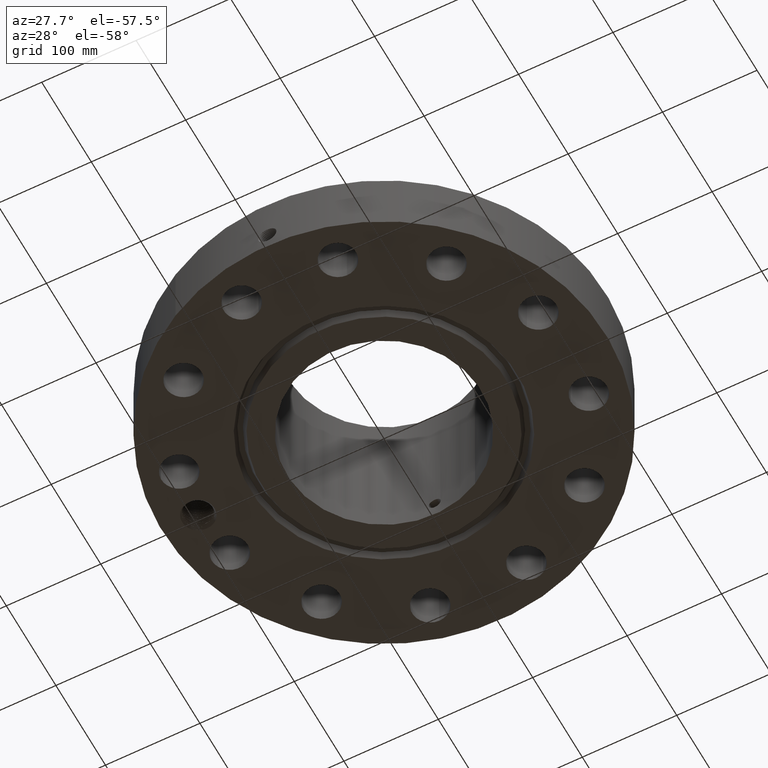
[diagram: clean part render]
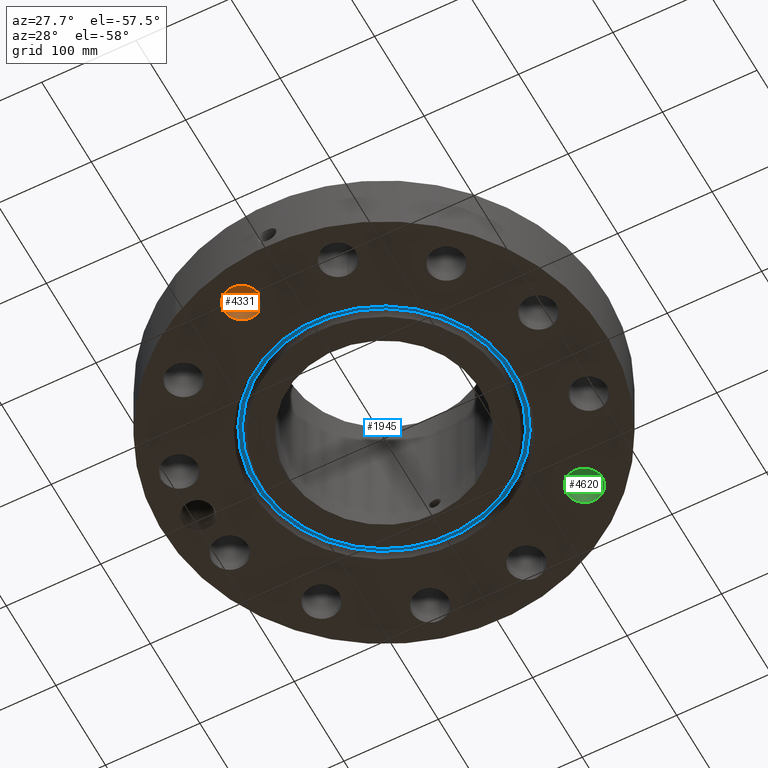
[diagram: same view with three faces highlighted in distinct colors, each labeled with its STEP entity id]
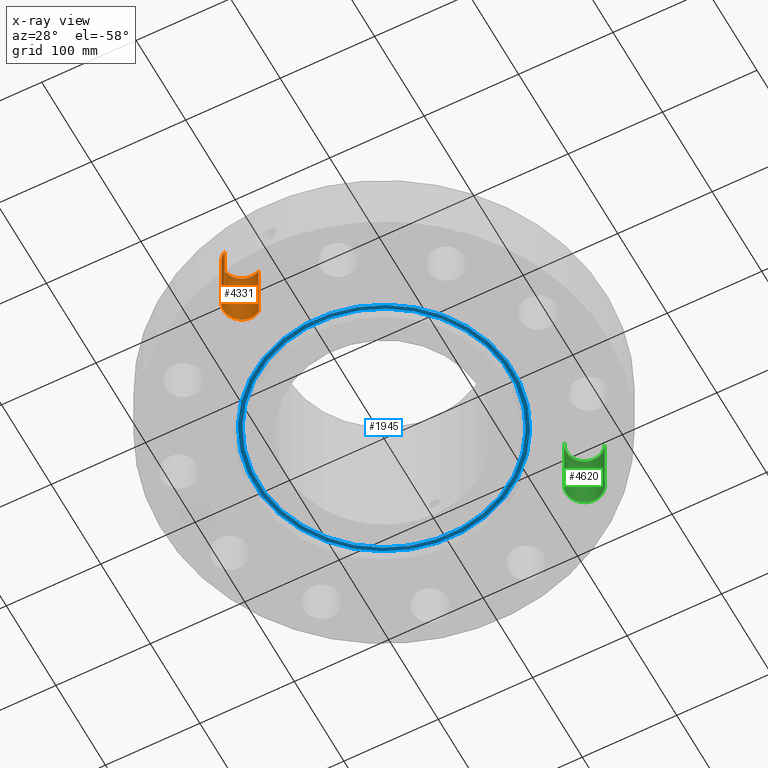
[diagram: x-ray of the same camera — body ghosted, the three highlighted faces saturated]
A machine part, auxiliary view with three faces highlighted in distinct colors.
The next image is the same camera in x-ray (body ghosted, the three faces saturated) — at least one of them is partly hidden behind the body in this view.
Their STEP definitions:

[orange] entity #4331 — the highlighted cylindrical surface (edge-blend (fillet) strip) has radius 19.05 mm, axis along (0, -0, -1).
#3040=AXIS2_PLACEMENT_3D('Circle Axis2P3D',#3038,#3039,$) ;
#4292=AXIS2_PLACEMENT_3D('Cylinder Axis2P3D',#4289,#4290,#4291) ;
#4322=AXIS2_PLACEMENT_3D('Circle Axis2P3D',#4320,#4321,$) ;
#3038=CARTESIAN_POINT('Axis2P3D Location',(-2.00584759955,-7.48592515377,2.81200000001)) ;
#3042=CARTESIAN_POINT('Vertex',(-2.36541675351,-8.14411207519,2.81200000001)) ;
#3044=CARTESIAN_POINT('Vertex',(-1.6462784456,-6.82773823235,2.81200000001)) ;
#4289=CARTESIAN_POINT('Axis2P3D Location',(-2.00584759955,-7.48592515377,2.80806299214)) ;
#4294=CARTESIAN_POINT('Line Origine',(-1.6462784456,-6.82773823235,1.40600000001)) ;
#4298=CARTESIAN_POINT('Vertex',(-1.6462784456,-6.82773823235,0.)) ;
#4305=CARTESIAN_POINT('Vertex',(-2.36541675351,-8.14411207519,0.)) ;
#4308=CARTESIAN_POINT('Line Origine',(-2.36541675351,-8.14411207519,1.40600000001)) ;
#4320=CARTESIAN_POINT('Axis2P3D Location',(-2.00584759955,-7.48592515377,0.)) ;
#3039=DIRECTION('Axis2P3D Direction',(0.,0.,-0.0393700787402)) ;
#4290=DIRECTION('Axis2P3D Direction',(0.,-0.,-0.0393700787402)) ;
#4291=DIRECTION('Axis2P3D XDirection',(-0.0188750212049,-0.0345504945626,0.)) ;
#4295=DIRECTION('Vector Direction',(0.,0.,-0.0393700787402)) ;
#4309=DIRECTION('Vector Direction',(0.,0.,-0.0393700787402)) ;
#4321=DIRECTION('Axis2P3D Direction',(0.,-0.,-0.0393700787402)) ;
#4296=VECTOR('Line Direction',#4295,0.0393700787402) ;
#4310=VECTOR('Line Direction',#4309,0.0393700787402) ;
#4326=ORIENTED_EDGE('',*,*,#4312,.F.) ;
#4327=ORIENTED_EDGE('',*,*,#4324,.T.) ;
#4328=ORIENTED_EDGE('',*,*,#4300,.T.) ;
#4329=ORIENTED_EDGE('',*,*,#3046,.F.) ;
#4331=ADVANCED_FACE('PartBody',(#4330),#4293,.F.) ;
#3041=CIRCLE('generated circle',#3040,0.750000000003) ;
#4323=CIRCLE('generated circle',#4322,0.750000000003) ;
#4293=CYLINDRICAL_SURFACE('generated cylinder',#4292,0.750000000003) ;
#3046=EDGE_CURVE('',#3043,#3045,#3041,.T.) ;
#4300=EDGE_CURVE('',#4299,#3045,#4297,.F.) ;
#4312=EDGE_CURVE('',#4306,#3043,#4311,.F.) ;
#4324=EDGE_CURVE('',#4306,#4299,#4323,.T.) ;
#4325=EDGE_LOOP('',(#4326,#4327,#4328,#4329)) ;
#4330=FACE_OUTER_BOUND('',#4325,.T.) ;
#4297=LINE('Line',#4294,#4296) ;
#4311=LINE('Line',#4308,#4310) ;
#3043=VERTEX_POINT('',#3042) ;
#3045=VERTEX_POINT('',#3044) ;
#4299=VERTEX_POINT('',#4298) ;
#4306=VERTEX_POINT('',#4305) ;

[blue] entity #1945 — the highlighted planar face has unit normal (0, 0, 1).
#1425=AXIS2_PLACEMENT_3D('Circle Axis2P3D',#1423,#1424,$) ;
#1451=AXIS2_PLACEMENT_3D('Circle Axis2P3D',#1449,#1450,$) ;
#1921=AXIS2_PLACEMENT_3D('Plane Axis2P3D',#1918,#1919,#1920) ;
#1925=AXIS2_PLACEMENT_3D('Circle Axis2P3D',#1923,#1924,$) ;
#1934=AXIS2_PLACEMENT_3D('Circle Axis2P3D',#1932,#1933,$) ;
#1423=CARTESIAN_POINT('Axis2P3D Location',(0.,0.,0.312000000001)) ;
#1427=CARTESIAN_POINT('Vertex',(2.50753589932,-4.59001367545,0.312000000001)) ;
#1429=CARTESIAN_POINT('Vertex',(-2.50753589932,4.59001367545,0.312000000001)) ;
#1449=CARTESIAN_POINT('Axis2P3D Location',(0.,0.,0.312000000001)) ;
#1918=CARTESIAN_POINT('Axis2P3D Location',(0.,5.23029270951,0.312000000001)) ;
#1923=CARTESIAN_POINT('Axis2P3D Location',(0.,0.,0.312000000001)) ;
#1927=CARTESIAN_POINT('Vertex',(-2.58636044837,4.73430104467,0.312000000001)) ;
#1929=CARTESIAN_POINT('Vertex',(2.58636044837,-4.73430104467,0.312000000001)) ;
#1932=CARTESIAN_POINT('Axis2P3D Location',(0.,0.,0.312000000001)) ;
#1424=DIRECTION('Axis2P3D Direction',(0.,0.,0.0393700787402)) ;
#1450=DIRECTION('Axis2P3D Direction',(0.,0.,0.0393700787402)) ;
#1919=DIRECTION('Axis2P3D Direction',(0.,0.,0.0393700787402)) ;
#1920=DIRECTION('Axis2P3D XDirection',(0.0393700787402,0.,0.)) ;
#1924=DIRECTION('Axis2P3D Direction',(0.,0.,0.0393700787402)) ;
#1933=DIRECTION('Axis2P3D Direction',(0.,0.,0.0393700787402)) ;
#1938=ORIENTED_EDGE('',*,*,#1931,.F.) ;
#1939=ORIENTED_EDGE('',*,*,#1936,.F.) ;
#1942=ORIENTED_EDGE('',*,*,#1431,.T.) ;
#1943=ORIENTED_EDGE('',*,*,#1453,.T.) ;
#1944=FACE_BOUND('',#1941,.T.) ;
#1945=ADVANCED_FACE('PartBody',(#1940,#1944),#1922,.F.) ;
#1426=CIRCLE('generated circle',#1425,5.23029270951) ;
#1452=CIRCLE('generated circle',#1451,5.23029270951) ;
#1926=CIRCLE('generated circle',#1925,5.39470729053) ;
#1935=CIRCLE('generated circle',#1934,5.39470729053) ;
#1431=EDGE_CURVE('',#1428,#1430,#1426,.T.) ;
#1453=EDGE_CURVE('',#1430,#1428,#1452,.T.) ;
#1931=EDGE_CURVE('',#1928,#1930,#1926,.T.) ;
#1936=EDGE_CURVE('',#1930,#1928,#1935,.T.) ;
#1937=EDGE_LOOP('',(#1938,#1939)) ;
#1941=EDGE_LOOP('',(#1942,#1943)) ;
#1940=FACE_OUTER_BOUND('',#1937,.T.) ;
#1922=PLANE('',#1921) ;
#1428=VERTEX_POINT('',#1427) ;
#1430=VERTEX_POINT('',#1429) ;
#1928=VERTEX_POINT('',#1927) ;
#1930=VERTEX_POINT('',#1929) ;

[green] entity #4620 — the highlighted cylindrical surface (edge-blend (fillet) strip) has radius 19.05 mm, axis along (0, 0, -1).
#3175=AXIS2_PLACEMENT_3D('Circle Axis2P3D',#3173,#3174,$) ;
#4593=AXIS2_PLACEMENT_3D('Cylinder Axis2P3D',#4590,#4591,#4592) ;
#4604=AXIS2_PLACEMENT_3D('Circle Axis2P3D',#4602,#4603,$) ;
#3168=CARTESIAN_POINT('Vertex',(6.12056703667,5.87029957163,2.81200000001)) ;
#3170=CARTESIAN_POINT('Vertex',(4.83958807177,5.08985553681,2.81200000001)) ;
#3173=CARTESIAN_POINT('Axis2P3D Location',(5.48007755422,5.48007755422,2.81200000001)) ;
#4590=CARTESIAN_POINT('Axis2P3D Location',(5.48007755422,5.48007755422,2.80806299214)) ;
#4595=CARTESIAN_POINT('Line Origine',(4.83958807177,5.08985553681,1.40600000001)) ;
#4599=CARTESIAN_POINT('Vertex',(4.83958807177,5.08985553681,0.)) ;
#4602=CARTESIAN_POINT('Axis2P3D Location',(5.48007755422,5.48007755422,0.)) ;
#4606=CARTESIAN_POINT('Vertex',(6.12056703667,5.87029957163,0.)) ;
#4609=CARTESIAN_POINT('Line Origine',(6.12056703667,5.87029957163,1.40600000001)) ;
#3174=DIRECTION('Axis2P3D Direction',(0.,0.,-0.0393700787402)) ;
#4591=DIRECTION('Axis2P3D Direction',(0.,0.,-0.0393700787402)) ;
#4592=DIRECTION('Axis2P3D XDirection',(0.0336214951417,0.0204840954021,0.)) ;
#4596=DIRECTION('Vector Direction',(0.,0.,-0.0393700787402)) ;
#4603=DIRECTION('Axis2P3D Direction',(0.,0.,-0.0393700787402)) ;
#4610=DIRECTION('Vector Direction',(0.,0.,-0.0393700787402)) ;
#4597=VECTOR('Line Direction',#4596,0.0393700787402) ;
#4611=VECTOR('Line Direction',#4610,0.0393700787402) ;
#4615=ORIENTED_EDGE('',*,*,#4601,.F.) ;
#4616=ORIENTED_EDGE('',*,*,#4608,.T.) ;
#4617=ORIENTED_EDGE('',*,*,#4613,.T.) ;
#4618=ORIENTED_EDGE('',*,*,#3177,.F.) ;
#4620=ADVANCED_FACE('PartBody',(#4619),#4594,.F.) ;
#3176=CIRCLE('generated circle',#3175,0.750000000003) ;
#4605=CIRCLE('generated circle',#4604,0.750000000003) ;
#4594=CYLINDRICAL_SURFACE('generated cylinder',#4593,0.750000000003) ;
#3177=EDGE_CURVE('',#3171,#3169,#3176,.T.) ;
#4601=EDGE_CURVE('',#4600,#3171,#4598,.F.) ;
#4608=EDGE_CURVE('',#4600,#4607,#4605,.T.) ;
#4613=EDGE_CURVE('',#4607,#3169,#4612,.F.) ;
#4614=EDGE_LOOP('',(#4615,#4616,#4617,#4618)) ;
#4619=FACE_OUTER_BOUND('',#4614,.T.) ;
#4598=LINE('Line',#4595,#4597) ;
#4612=LINE('Line',#4609,#4611) ;
#3169=VERTEX_POINT('',#3168) ;
#3171=VERTEX_POINT('',#3170) ;
#4600=VERTEX_POINT('',#4599) ;
#4607=VERTEX_POINT('',#4606) ;